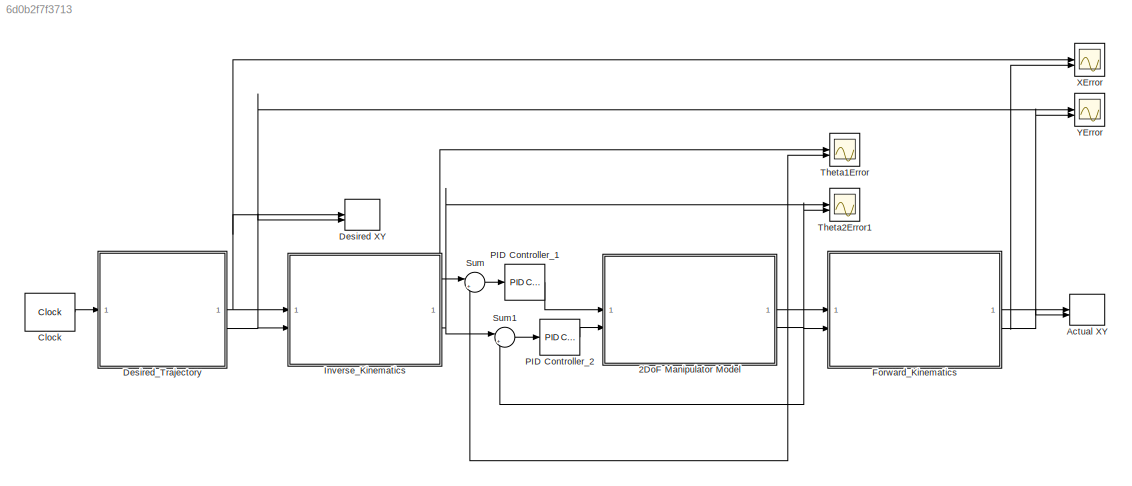
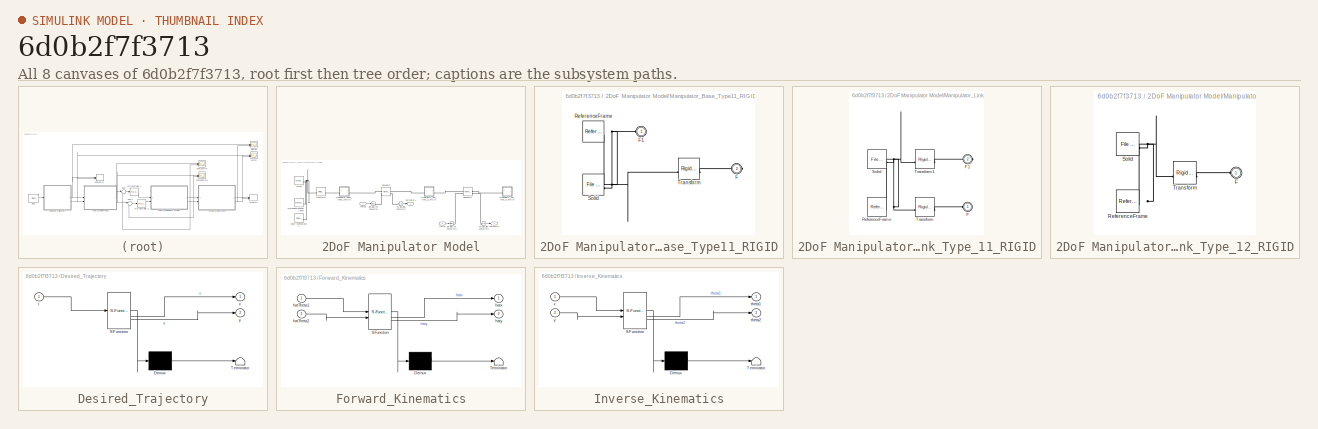
[diagram: thumbnail index - all 8 canvases of the model, root first then tree order]
MODEL slx_6d0b2f7f3713
KIND model
CONFIG AbsTol = auto
CONFIG EnableMultiTasking = off
CONFIG FixedStep = auto
CONFIG MaxStep = auto
CONFIG MinStep = auto
CONFIG RelTol = 1e-3
CONFIG SampleTimeConstraint = Unconstrained
CONFIG SolverName = VariableStepAuto
CONFIG StartTime = 0.0
CONFIG StopTime = 20
WORKSPACE source: external: MATLAB File  (data not in archive)
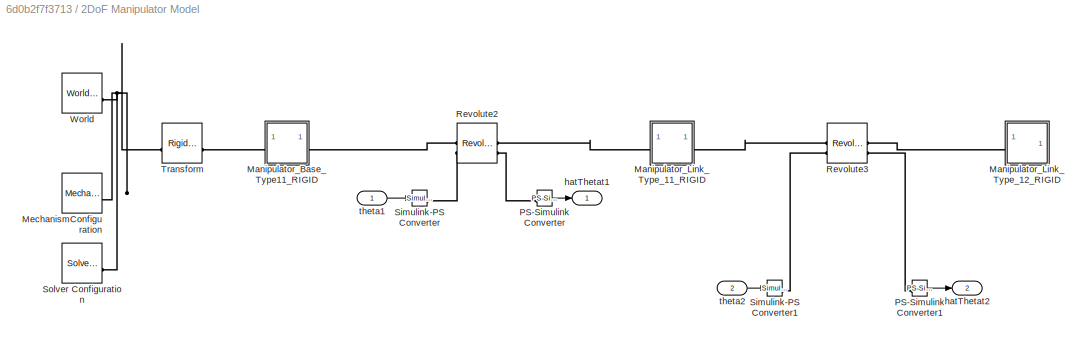
BLOCK [SubSystem] 2DoF Manipulator Model
BLOCK [SubSystem] 2DoF Manipulator Model/Manipulator_Base_Type11_RIGID
BLOCK [PMIOPort] 2DoF Manipulator Model/Manipulator_Base_Type11_RIGID/F
  Port = 2
  Side = Right
BLOCK [PMIOPort] 2DoF Manipulator Model/Manipulator_Base_Type11_RIGID/F1
  Side = Left
BLOCK [Reference] 2DoF Manipulator Model/Manipulator_Base_Type11_RIGID/ReferenceFrame  REF=sm_lib/Frames and
Transforms/Reference
Frame
  SourceBlock = sm_lib/Frames and\nTransforms/Reference\nFrame
  SourceType = Reference\nFrame
BLOCK [Reference] 2DoF Manipulator Model/Manipulator_Base_Type11_RIGID/Solid  REF=sm_lib/Body Elements/File Solid
  SourceBlock = sm_lib/Body Elements/File Solid
  SourceType = File Solid
BLOCK [Reference] 2DoF Manipulator Model/Manipulator_Base_Type11_RIGID/Transform  REF=sm_lib/Frames and
Transforms/Rigid
Transform
  SourceBlock = sm_lib/Frames and\nTransforms/Rigid\nTransform
  SourceType = Rigid\nTransform
BLOCK [SubSystem] 2DoF Manipulator Model/Manipulator_Link_Type_11_RIGID
BLOCK [PMIOPort] 2DoF Manipulator Model/Manipulator_Link_Type_11_RIGID/F
  Side = Left
BLOCK [PMIOPort] 2DoF Manipulator Model/Manipulator_Link_Type_11_RIGID/F1
  Port = 2
  Side = Right
BLOCK [Reference] 2DoF Manipulator Model/Manipulator_Link_Type_11_RIGID/ReferenceFrame  REF=sm_lib/Frames and
Transforms/Reference
Frame
  SourceBlock = sm_lib/Frames and\nTransforms/Reference\nFrame
  SourceType = Reference\nFrame
BLOCK [Reference] 2DoF Manipulator Model/Manipulator_Link_Type_11_RIGID/Solid  REF=sm_lib/Body Elements/File Solid
  SourceBlock = sm_lib/Body Elements/File Solid
  SourceType = File Solid
BLOCK [Reference] 2DoF Manipulator Model/Manipulator_Link_Type_11_RIGID/Transform  REF=sm_lib/Frames and
Transforms/Rigid
Transform
  SourceBlock = sm_lib/Frames and\nTransforms/Rigid\nTransform
  SourceType = Rigid\nTransform
BLOCK [Reference] 2DoF Manipulator Model/Manipulator_Link_Type_11_RIGID/Transform1  REF=sm_lib/Frames and
Transforms/Rigid
Transform
  SourceBlock = sm_lib/Frames and\nTransforms/Rigid\nTransform
  SourceType = Rigid\nTransform
BLOCK [SubSystem] 2DoF Manipulator Model/Manipulator_Link_Type_12_RIGID
BLOCK [PMIOPort] 2DoF Manipulator Model/Manipulator_Link_Type_12_RIGID/F
  Side = Left
BLOCK [Reference] 2DoF Manipulator Model/Manipulator_Link_Type_12_RIGID/ReferenceFrame  REF=sm_lib/Frames and
Transforms/Reference
Frame
  SourceBlock = sm_lib/Frames and\nTransforms/Reference\nFrame
  SourceType = Reference\nFrame
BLOCK [Reference] 2DoF Manipulator Model/Manipulator_Link_Type_12_RIGID/Solid  REF=sm_lib/Body Elements/File Solid
  SourceBlock = sm_lib/Body Elements/File Solid
  SourceType = File Solid
BLOCK [Reference] 2DoF Manipulator Model/Manipulator_Link_Type_12_RIGID/Transform  REF=sm_lib/Frames and
Transforms/Rigid
Transform
  SourceBlock = sm_lib/Frames and\nTransforms/Rigid\nTransform
  SourceType = Rigid\nTransform
BLOCK [Reference] 2DoF Manipulator Model/MechanismConfiguration  REF=sm_lib/Utilities/Mechanism
Configuration
  SourceBlock = sm_lib/Utilities/Mechanism\nConfiguration
  SourceType = Mechanism\nConfiguration
BLOCK [Reference] 2DoF Manipulator Model/PS-Simulink Converter  REF=nesl_utility/PS-Simulink
Converter
  SourceBlock = nesl_utility/PS-Simulink\nConverter
  SourceType = PS-Simulink\nConverter
BLOCK [Reference] 2DoF Manipulator Model/PS-Simulink Converter1  REF=nesl_utility/PS-Simulink
Converter
  SourceBlock = nesl_utility/PS-Simulink\nConverter
  SourceType = PS-Simulink\nConverter
BLOCK [Reference] 2DoF Manipulator Model/Revolute2  REF=sm_lib/Joints/Revolute Joint
  SourceBlock = sm_lib/Joints/Revolute Joint
  SourceType = Revolute Joint
BLOCK [Reference] 2DoF Manipulator Model/Revolute3  REF=sm_lib/Joints/Revolute Joint
  SourceBlock = sm_lib/Joints/Revolute Joint
  SourceType = Revolute Joint
BLOCK [Reference] 2DoF Manipulator Model/Simulink-PS Converter  REF=nesl_utility/Simulink-PS
Converter
  SourceBlock = nesl_utility/Simulink-PS\nConverter
  SourceType = Simulink-PS\nConverter
BLOCK [Reference] 2DoF Manipulator Model/Simulink-PS Converter1  REF=nesl_utility/Simulink-PS
Converter
  SourceBlock = nesl_utility/Simulink-PS\nConverter
  SourceType = Simulink-PS\nConverter
BLOCK [Reference] 2DoF Manipulator Model/Solver Configuration  REF=nesl_utility/Solver
Configuration
  SourceBlock = nesl_utility/Solver\nConfiguration
  SourceType = Solver\nConfiguration
BLOCK [Reference] 2DoF Manipulator Model/Transform  REF=sm_lib/Frames and
Transforms/Rigid
Transform
  SourceBlock = sm_lib/Frames and\nTransforms/Rigid\nTransform
  SourceType = Rigid\nTransform
BLOCK [Reference] 2DoF Manipulator Model/World  REF=sm_lib/Frames and
Transforms/World Frame
  SourceBlock = sm_lib/Frames and\nTransforms/World Frame
  SourceType = World Frame
BLOCK [Outport] 2DoF Manipulator Model/hatThetat1
BLOCK [Outport] 2DoF Manipulator Model/hatThetat2
  Port = 2
BLOCK [Inport] 2DoF Manipulator Model/theta1
BLOCK [Inport] 2DoF Manipulator Model/theta2
  Port = 2
BLOCK [Record] Actual XY
  CompatibilityTag = XY
  FileSettingsInternal = {"entries":[{"content":{"excelSettings":{"content":{},"type":"Streamout.ExcelSettings"}},"type":"Streamout.FileSettingStorage","uuid":"929d2755-3291-40c8-9dff-22aeb2db6787"}],"packageUris":["http://schema.mathworks.com/mf0/streamout_blocks/R2020a"],"version":"1.0"}
  Layout = [1 1]
  SignalsInternal = {"entries":[{"content":{"signals":[{"content":{"blockPath":["TwoLinkManipulator/Actual XY"],"channel":[],"dimensions":[1],"domain":"TwoLinkManipulator/Actual XY","lineColor":"#edb120","plots":[1],"port":1,"sid":[""],"signalID":6206,"signalName":"Forward_Kinematics:1"},"type":"RecordBlkView.Signal","uuid":"4942dda8-2938-433b-bdd3-9c998526781b"},{"content":{"blockPath":["TwoLinkManipulator/Actual XY...<+433ch>
  VisualizationBindings = {"xyplotplugin":{"info":[{"series":[{"bindingParametersList":[{"parameter":"X-Axis","signalID":6206,"signalName":"Forward_Kinematics:1"},{"parameter":"Y-Axis","signalID":6210,"signalName":"Forward_Kinematics:2"}],"seriesID":62402}],"subplotID":1}]}}
BLOCK [Clock] Clock
  DisplayTime = on
BLOCK [Record] Desired XY
  CompatibilityTag = XY
  FileSettingsInternal = {"entries":[{"content":{"excelSettings":{"content":{},"type":"Streamout.ExcelSettings"}},"type":"Streamout.FileSettingStorage","uuid":"936fbf1e-85d7-4da0-9cab-0e98c3a825e2"}],"packageUris":["http://schema.mathworks.com/mf0/streamout_blocks/R2020a"],"version":"1.0"}
  Layout = [1 1]
  SignalsInternal = {"entries":[{"content":{"signals":[{"content":{"blockPath":["TwoLinkManipulator/Desired XY"],"channel":[],"dimensions":[1],"domain":"TwoLinkManipulator/Desired XY","lineColor":"#77ac30","plots":[1],"port":1,"sid":[""],"signalID":6214,"signalName":"Desired_Trajectory:1"},"type":"RecordBlkView.Signal","uuid":"2225b886-a945-4238-9ff7-b0cac7fa9895"},{"content":{"blockPath":["TwoLinkManipulator/Desired...<+437ch>
  VisualizationBindings = {"xyplotplugin":{"info":[{"series":[{"bindingParametersList":[{"parameter":"Y-Axis","signalID":6218,"signalName":"Desired_Trajectory:2"},{"parameter":"X-Axis","signalID":6214,"signalName":"Desired_Trajectory:1"}],"seriesID":51910}],"subplotID":1}]}}
BLOCK [SubSystem] Desired_Trajectory
  ErrorFcn = Stateflow.Translate.translate
  LibrarySourceBlock = simulink/User-Defined\nFunctions/MATLAB Function
  PermitHierarchicalResolution = ExplicitOnly
  SFBlockType = MATLAB Function
  TreatAsAtomicUnit = on
BLOCK [Demux] Desired_Trajectory/ Demux 
  Outputs = 1
BLOCK [S-Function] Desired_Trajectory/ SFunction 
  EnableBusSupport = on
  FunctionName = sf_sfun
  PortCounts = [1 3]
  SFcnIsStateOwnerBlock = off
  SFunctionDeploymentMode = off
  Tag = Stateflow S-Function 2
BLOCK [Terminator] Desired_Trajectory/ Terminator 
BLOCK [Inport] Desired_Trajectory/t
BLOCK [Outport] Desired_Trajectory/x
BLOCK [Outport] Desired_Trajectory/y
  Port = 2
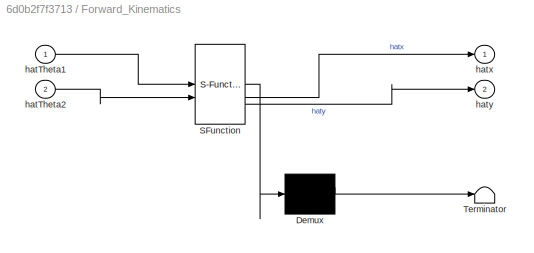
BLOCK [SubSystem] Forward_Kinematics
  ErrorFcn = Stateflow.Translate.translate
  LibrarySourceBlock = simulink/User-Defined\nFunctions/MATLAB Function
  PermitHierarchicalResolution = ExplicitOnly
  SFBlockType = MATLAB Function
  TreatAsAtomicUnit = on
BLOCK [Demux] Forward_Kinematics/ Demux 
  Outputs = 1
BLOCK [S-Function] Forward_Kinematics/ SFunction 
  EnableBusSupport = on
  FunctionName = sf_sfun
  PortCounts = [2 3]
  SFcnIsStateOwnerBlock = off
  SFunctionDeploymentMode = off
  Tag = Stateflow S-Function 3
BLOCK [Terminator] Forward_Kinematics/ Terminator 
BLOCK [Inport] Forward_Kinematics/hatTheta1
BLOCK [Inport] Forward_Kinematics/hatTheta2
  Port = 2
BLOCK [Outport] Forward_Kinematics/hatx
BLOCK [Outport] Forward_Kinematics/haty
  Port = 2
BLOCK [SubSystem] Inverse_Kinematics
  ErrorFcn = Stateflow.Translate.translate
  LibrarySourceBlock = simulink/User-Defined\nFunctions/MATLAB Function
  PermitHierarchicalResolution = ExplicitOnly
  SFBlockType = MATLAB Function
  TreatAsAtomicUnit = on
BLOCK [Demux] Inverse_Kinematics/ Demux 
  Outputs = 1
BLOCK [S-Function] Inverse_Kinematics/ SFunction 
  EnableBusSupport = on
  FunctionName = sf_sfun
  PortCounts = [2 3]
  SFcnIsStateOwnerBlock = off
  SFunctionDeploymentMode = off
  Tag = Stateflow S-Function 1
BLOCK [Terminator] Inverse_Kinematics/ Terminator 
BLOCK [Outport] Inverse_Kinematics/theta1
BLOCK [Outport] Inverse_Kinematics/theta2
  Port = 2
BLOCK [Inport] Inverse_Kinematics/x
BLOCK [Inport] Inverse_Kinematics/y
  Port = 2
BLOCK [Reference] PID Controller_1  REF=slpidlib/PID Controller
  LibrarySourceBlock = simulink/Continuous/PID Controller
  SourceBlock = slpidlib/PID Controller
  SourceType = PID 1dof
BLOCK [Reference] PID Controller_2  REF=slpidlib/PID Controller
  LibrarySourceBlock = simulink/Continuous/PID Controller
  SourceBlock = slpidlib/PID Controller
  SourceType = PID 1dof
BLOCK [Sum] Sum
  Inputs = |+-
BLOCK [Sum] Sum1
  Inputs = |+-
BLOCK [Scope] Theta1Error
  Floating = off
  NumInputPorts = 2
  ScopeSpecificationString = Simulink.scopes.TimeScopeBlockCfg('CurrentConfiguration', extmgr.ConfigurationSet(extmgr.Configuration('Core','General UI',true),extmgr.Configuration('Core','Source UI',true),extmgr.Configuration('Sources','WiredSimulink',true,'DataLoggingVariableName','ScopeData1'),extmgr.Configuration('Visuals','Time Domain',true,'SerializedDisplays',{struct('MinYLimReal','-0.35342','MaxYLimReal','3.18075','YLab...<+1489ch>
BLOCK [Scope] Theta2Error1
  Floating = off
  NumInputPorts = 2
  ScopeSpecificationString = Simulink.scopes.TimeScopeBlockCfg('CurrentConfiguration', extmgr.ConfigurationSet(extmgr.Configuration('Core','General UI',true),extmgr.Configuration('Core','Source UI',true),extmgr.Configuration('Sources','WiredSimulink',true,'DataLoggingVariableName','ScopeData2'),extmgr.Configuration('Visuals','Time Domain',true,'SerializedDisplays',{struct('MinYLimReal','-0.02678','MaxYLimReal','0.24101','YLab...<+1488ch>
BLOCK [Scope] XError
  Floating = off
  NumInputPorts = 2
  ScopeSpecificationString = Simulink.scopes.TimeScopeBlockCfg('CurrentConfiguration', extmgr.ConfigurationSet(extmgr.Configuration('Core','General UI',true),extmgr.Configuration('Core','Source UI',true),extmgr.Configuration('Sources','WiredSimulink',true,'DataLoggingVariableName','ScopeData3'),extmgr.Configuration('Visuals','Time Domain',true,'SerializedDisplays',{struct('MinYLimReal','50.84922','MaxYLimReal','438.79453','YL...<+1449ch>
BLOCK [Scope] YError
  Floating = off
  NumInputPorts = 2
  ScopeSpecificationString = Simulink.scopes.TimeScopeBlockCfg('CurrentConfiguration', extmgr.ConfigurationSet(extmgr.Configuration('Core','General UI',true),extmgr.Configuration('Core','Source UI',true),extmgr.Configuration('Sources','WiredSimulink',true),extmgr.Configuration('Visuals','Time Domain',true,'SerializedDisplays',{struct('MinYLimReal','-168.73074','MaxYLimReal','445.17435','YLabelReal','','MinYLimMag',' 0.00000',...<+1414ch>
LINE 2DoF Manipulator Model/PS-Simulink Converter1:1 -> 2DoF Manipulator Model/hatThetat2:1
LINE 2DoF Manipulator Model/PS-Simulink Converter:1 -> 2DoF Manipulator Model/hatThetat1:1
LINE 2DoF Manipulator Model/theta1:1 -> 2DoF Manipulator Model/Simulink-PS Converter:1
LINE 2DoF Manipulator Model/theta2:1 -> 2DoF Manipulator Model/Simulink-PS Converter1:1
NET 2DoF Manipulator Model:1 -> Forward_Kinematics:1, Sum:2, Theta1Error:2
NET 2DoF Manipulator Model:2 -> Forward_Kinematics:2, Sum1:2, Theta2Error1:2
LINE Clock:1 -> Desired_Trajectory:1
NET Desired_Trajectory:1 -> Desired XY:1, Inverse_Kinematics:1, XError:1
NET Desired_Trajectory:2 -> Desired XY:2, Inverse_Kinematics:2, YError:1
NET Forward_Kinematics:1 -> Actual XY:1, XError:2
NET Forward_Kinematics:2 -> Actual XY:2, YError:2
NET Inverse_Kinematics:1 -> Sum:1, Theta1Error:1
NET Inverse_Kinematics:2 -> Sum1:1, Theta2Error1:1
LINE PID Controller_1:1 -> 2DoF Manipulator Model:1
LINE PID Controller_2:1 -> 2DoF Manipulator Model:2
LINE Sum1:1 -> PID Controller_2:1
LINE Sum:1 -> PID Controller_1:1
PNET net1: 2DoF Manipulator Model/Manipulator_Base_Type11_RIGID/F1:RConn1 -- 2DoF Manipulator Model/Manipulator_Base_Type11_RIGID/ReferenceFrame:RConn1 -- 2DoF Manipulator Model/Manipulator_Base_Type11_RIGID/Solid:RConn1 -- 2DoF Manipulator Model/Manipulator_Base_Type11_RIGID/Transform:LConn1
PLINE 2DoF Manipulator Model/Manipulator_Base_Type11_RIGID/F:RConn1 -- 2DoF Manipulator Model/Manipulator_Base_Type11_RIGID/Transform:RConn1
PLINE 2DoF Manipulator Model/Manipulator_Base_Type11_RIGID:LConn1 -- 2DoF Manipulator Model/Transform:RConn1
PLINE 2DoF Manipulator Model/Manipulator_Base_Type11_RIGID:RConn1 -- 2DoF Manipulator Model/Revolute2:LConn1
PLINE 2DoF Manipulator Model/Manipulator_Link_Type_11_RIGID/F1:RConn1 -- 2DoF Manipulator Model/Manipulator_Link_Type_11_RIGID/Transform1:RConn1
PLINE 2DoF Manipulator Model/Manipulator_Link_Type_11_RIGID/F:RConn1 -- 2DoF Manipulator Model/Manipulator_Link_Type_11_RIGID/Transform:RConn1
PNET net2: 2DoF Manipulator Model/Manipulator_Link_Type_11_RIGID/ReferenceFrame:RConn1 -- 2DoF Manipulator Model/Manipulator_Link_Type_11_RIGID/Solid:RConn1 -- 2DoF Manipulator Model/Manipulator_Link_Type_11_RIGID/Transform1:LConn1 -- 2DoF Manipulator Model/Manipulator_Link_Type_11_RIGID/Transform:LConn1
PLINE 2DoF Manipulator Model/Manipulator_Link_Type_11_RIGID:LConn1 -- 2DoF Manipulator Model/Revolute2:RConn1
PLINE 2DoF Manipulator Model/Manipulator_Link_Type_11_RIGID:RConn1 -- 2DoF Manipulator Model/Revolute3:LConn1
PLINE 2DoF Manipulator Model/Manipulator_Link_Type_12_RIGID/F:RConn1 -- 2DoF Manipulator Model/Manipulator_Link_Type_12_RIGID/Transform:RConn1
PNET net3: 2DoF Manipulator Model/Manipulator_Link_Type_12_RIGID/ReferenceFrame:RConn1 -- 2DoF Manipulator Model/Manipulator_Link_Type_12_RIGID/Solid:RConn1 -- 2DoF Manipulator Model/Manipulator_Link_Type_12_RIGID/Transform:LConn1
PLINE 2DoF Manipulator Model/Manipulator_Link_Type_12_RIGID:LConn1 -- 2DoF Manipulator Model/Revolute3:RConn1
PNET net4: 2DoF Manipulator Model/MechanismConfiguration:RConn1 -- 2DoF Manipulator Model/Solver Configuration:RConn1 -- 2DoF Manipulator Model/Transform:LConn1 -- 2DoF Manipulator Model/World:RConn1
PLINE 2DoF Manipulator Model/PS-Simulink Converter1:LConn1 -- 2DoF Manipulator Model/Revolute3:RConn2
PLINE 2DoF Manipulator Model/PS-Simulink Converter:LConn1 -- 2DoF Manipulator Model/Revolute2:RConn2
PLINE 2DoF Manipulator Model/Revolute2:LConn2 -- 2DoF Manipulator Model/Simulink-PS Converter:RConn1
PLINE 2DoF Manipulator Model/Revolute3:LConn2 -- 2DoF Manipulator Model/Simulink-PS Converter1:RConn1
note: NET lines group one-source signal fan-out (src -> all destinations, sorted); 1:1 wires keep LINE; PNET lines group multi-terminal physical nets as a canonical sorted terminal list (undirected conserving connections); 2-terminal nets keep the pairwise PLINE form
CHART Desired_Trajectory states=1 transitions=1
  STATE_LABEL 'eML_blk_kernel()'
  STATE_LABEL 'SCRIPT:\nfunction [x, y] = Desired_Trajectory(t)\n\nx = 200 + 110*cos(t); % Dimension: mm\ny = 200 + 110*sin(t); % Dimension: mm\n'
CHART Forward_Kinematics states=1 transitions=1
  STATE_LABEL 'eML_blk_kernel()'
  STATE_LABEL 'SCRIPT:\nfunction [hatx, haty] = Forward_Kinematics(hatTheta1, hatTheta2)\n\nl1 = 200; % Dimension: mm\nl2 = 200; % Dimension: mm\nhatx = l1*cos(hatTheta1) + l2*cos(hatTheta1+hatTheta2); % Dimension: mm\nhaty = l1*sin(hatTheta1) + l2*sin(hatTheta1+hatTheta2); % Dimension: mm\n'
CHART Inverse_Kinematics states=1 transitions=1
  STATE_LABEL 'eML_blk_kernel()'
  STATE_LABEL 'SCRIPT:\nfunction [theta1, theta2] = inverse_kinematics(x, y)\nl1 = 200; % Dimension: mm\nl2 = 200; % Dimension: mm\ntheta2 = -acos((x^2+y^2-l1^2-l2^2)/(2*l1*l2)); % Dimension: rad (+, - choice enable)\ntheta1 = atan2(y, x) - atan2(l2*sin(theta2), l1+l2*cos(theta2)); % Dimension: rad'
CHART  states=0 transitions=0
CHART  states=0 transitions=0
CHART  states=0 transitions=0
